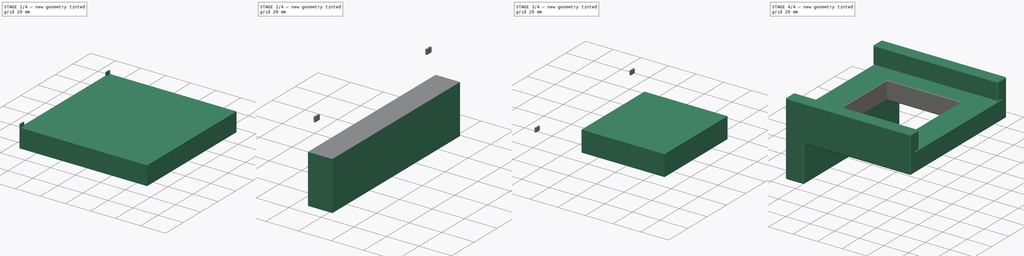
[diagram: build sequence overview — one tinted view per stage of 4, left to right]
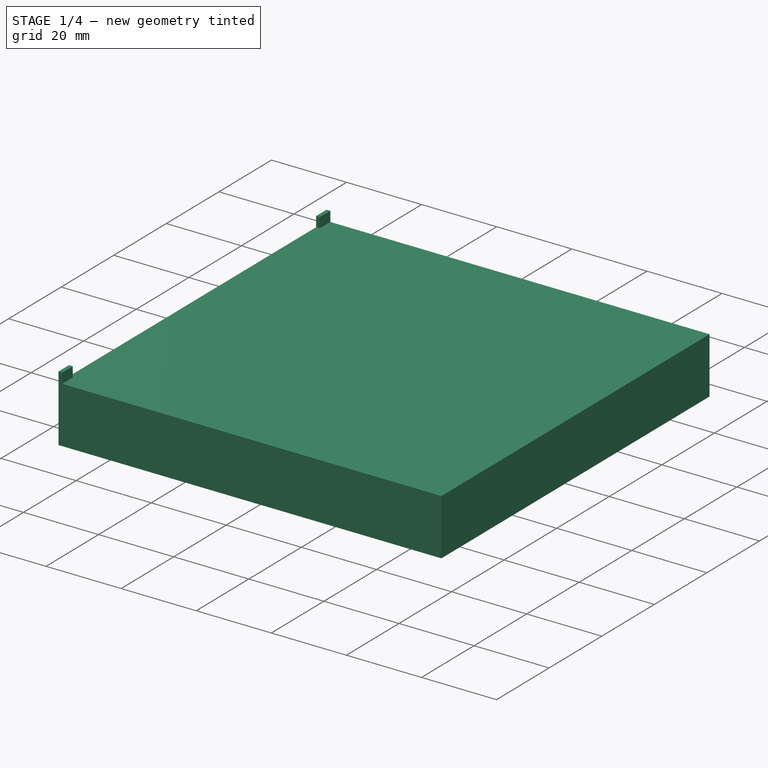
[diagram: stage 1 of 4 — iso view after this stage's code; geometry added in this stage tinted green]
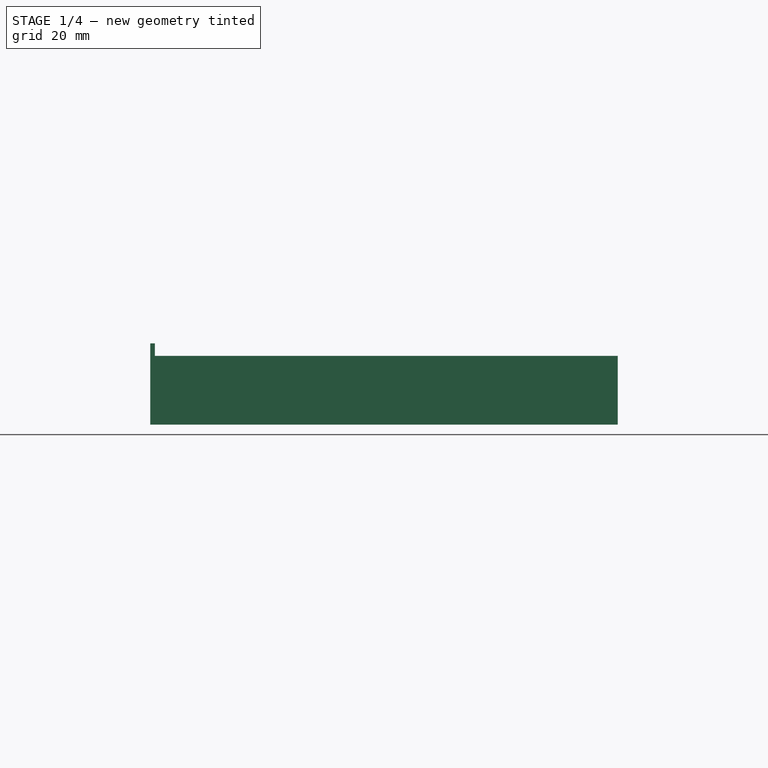
[diagram: stage 1 of 4 — front view after this stage's code; geometry added in this stage tinted green]
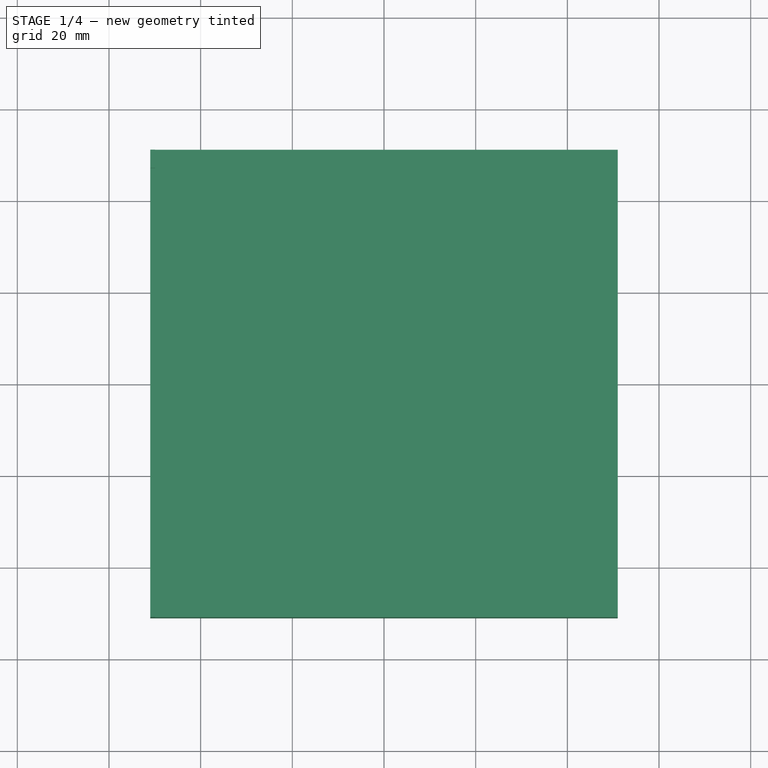
[diagram: stage 1 of 4 — top view after this stage's code; geometry added in this stage tinted green]
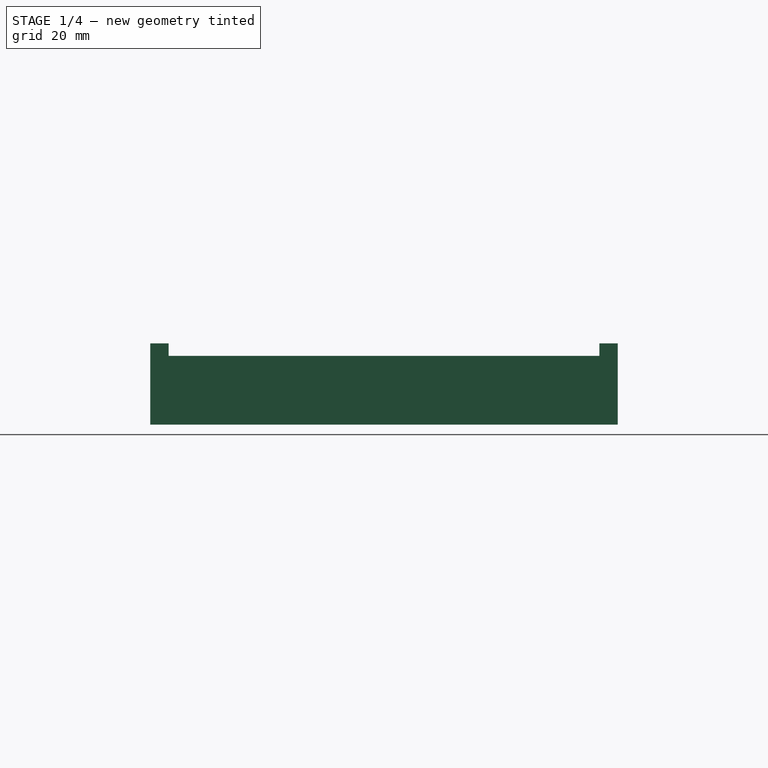
[diagram: stage 1 of 4 — right view after this stage's code; geometry added in this stage tinted green]
FCSTD DOCUMENT  (FreeCAD 0.19R19758 (Git))
Label: JohnScreenWithWindows
License: All rights reserved
LicenseURL: http://en.wikipedia.org/wiki/All_rights_reserved
objects: Sketcher::SketchObject×4, Part::Extrusion×4, Part::MultiFuse×3, Part::Fillet×2, Part::Box×2, Part::Cut×1
note: 16 computed .brp shape members not serialized (recipe doc carries the construction recipe); baked Part::Feature solids carry a one-line shape summary decoded from their .brp

FEATURE [Sketcher::SketchObject] Sketch
  sketch-geometry (4):
    g0: LineSegment StartX=-51 StartY=-51 StartZ=0 EndX=51 EndY=-51 EndZ=0
    g1: LineSegment StartX=51 StartY=-51 StartZ=0 EndX=51 EndY=51 EndZ=0
    g2: LineSegment StartX=51 StartY=51 StartZ=0 EndX=-51 EndY=51 EndZ=0
    g3: LineSegment StartX=-51 StartY=51 StartZ=0 EndX=-51 EndY=-51 EndZ=0
  constraints (11):
    c: Coincident(g0,g1)
    c: Coincident(g1,g2)
    c: Coincident(g2,g3)
    c: Coincident(g3,g0)
    c: Horizontal(g0)
    c: Horizontal(g2)
    c: Vertical(g1)
    c: Vertical(g3)
    c: Symmetric(g2,g0,g-1)
    c: Equal(g2,g1)
    c: Distance(g2) = 102
FEATURE [Part::Extrusion] Extrude
  Base = -> Sketch
  Dir = (0,0,1)
  DirMode = 2
  FaceMakerClass = Part::FaceMakerBullseye
  LengthFwd = 15
  LengthRev = 0
  Solid = true
  Symmetric = false
FEATURE [Part::Box] Box  label="Cube"
  AttacherType = Attacher::AttachEngine3D
  Height = 3
  Length = 1
  Placement = pos=(-51,47,14.7) rot=(0,0,1;0rad)
  Width = 4
FEATURE [Part::Box] Box001  label="Cube001"
  AttacherType = Attacher::AttachEngine3D
  Height = 3
  Length = 1
  Placement = pos=(-51,-51,14.7) rot=(0,0,1;0rad)
  Width = 4
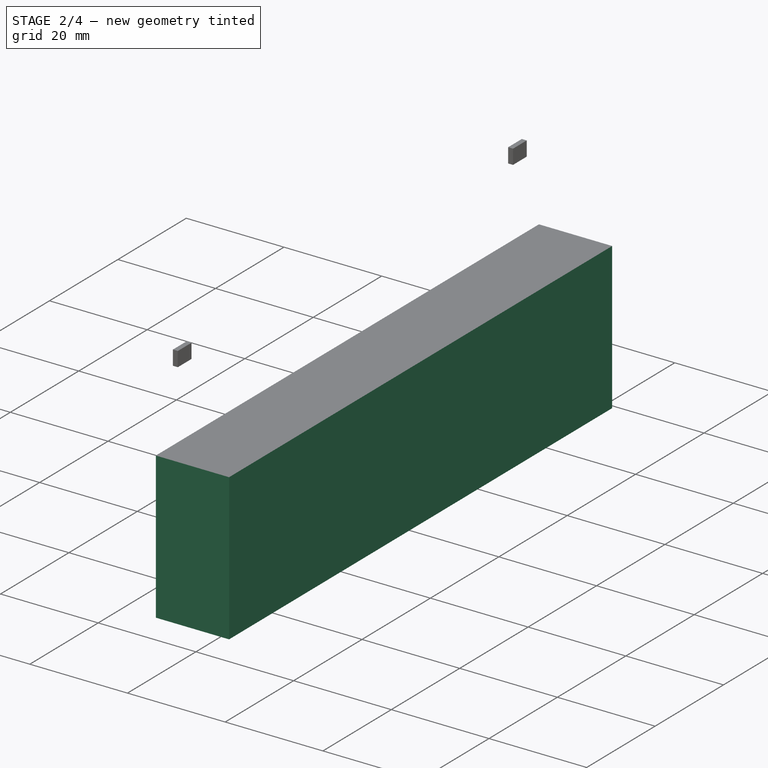
[diagram: stage 2 of 4 — iso view after this stage's code; geometry added in this stage tinted green]
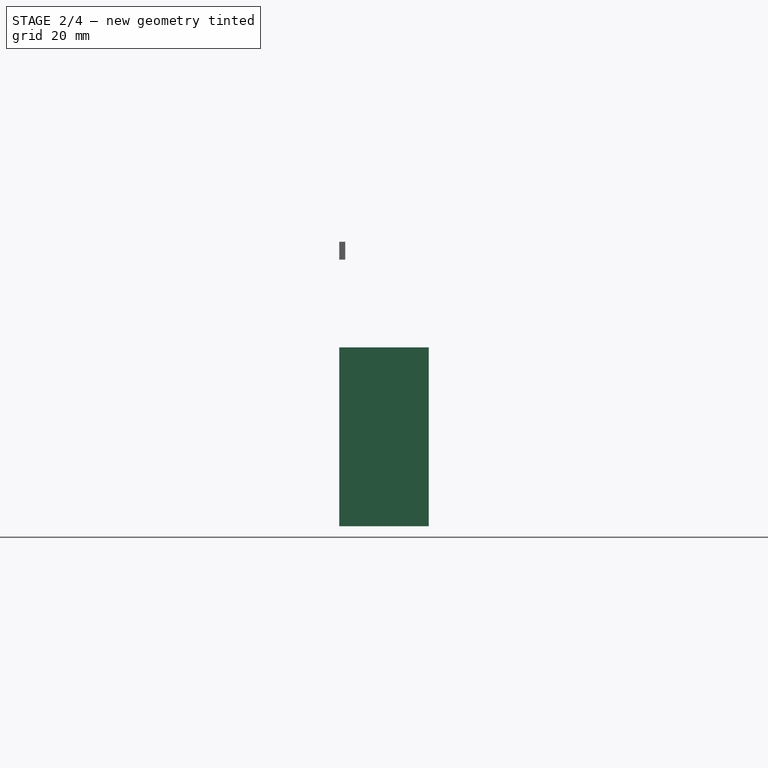
[diagram: stage 2 of 4 — front view after this stage's code; geometry added in this stage tinted green]
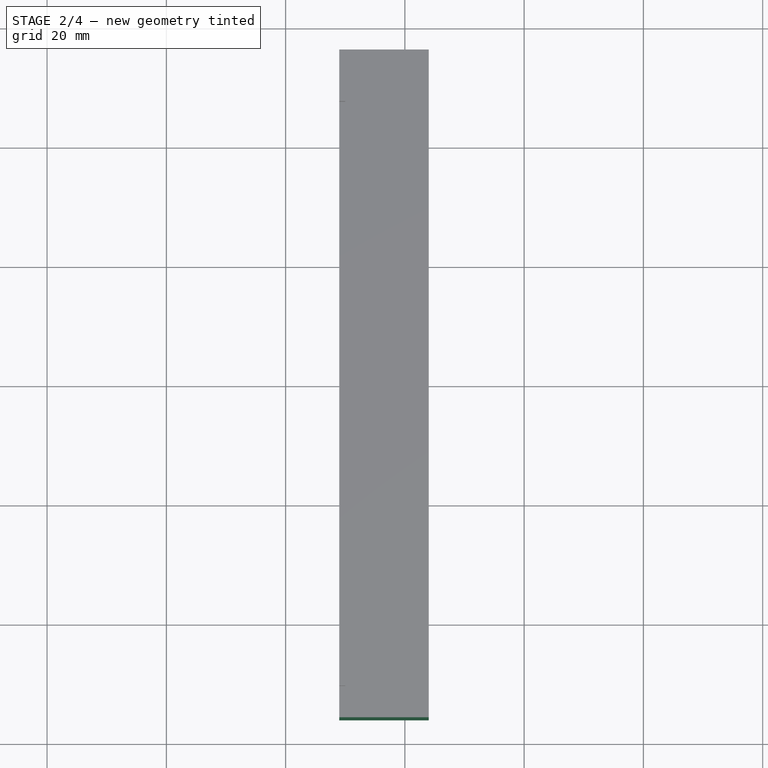
[diagram: stage 2 of 4 — top view after this stage's code; geometry added in this stage tinted green]
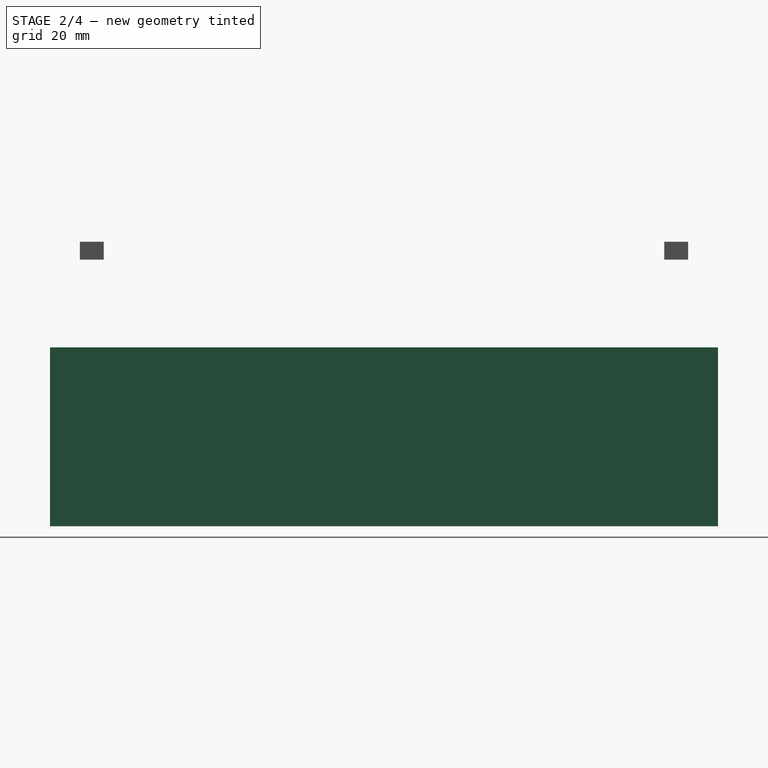
[diagram: stage 2 of 4 — right view after this stage's code; geometry added in this stage tinted green]
FEATURE [Sketcher::SketchObject] Sketch001
  ExternalGeometry = -> [Extrude]
  MapMode = 4
  Placement = pos=(0,0,0) rot=(0.57735,0.57735,0.57735;2.0944rad)
  Support = -> [Sketch]
  sketch-geometry (16):
    g0: LineSegment StartX=-56 StartY=0 StartZ=0 EndX=-56 EndY=30 EndZ=0
    g1: LineSegment StartX=-56 StartY=30 StartZ=0 EndX=-46 EndY=30 EndZ=0
    g2: LineSegment StartX=-56 StartY=0 StartZ=0 EndX=-46 EndY=0 EndZ=0
    g3: LineSegment StartX=-46 StartY=0 StartZ=0 EndX=-46 EndY=15 EndZ=0
    g4: LineSegment StartX=-46 StartY=30 StartZ=0 EndX=-46 EndY=15.9 EndZ=0
    g5: LineSegment StartX=-46 StartY=15.9 StartZ=0 EndX=-51 EndY=15.9 EndZ=0
    g6: LineSegment StartX=-51 StartY=15.9 StartZ=0 EndX=-51 EndY=15 EndZ=0
    g7: LineSegment StartX=-51 StartY=15 StartZ=0 EndX=-46 EndY=15 EndZ=0
    g8: LineSegment StartX=56 StartY=0 StartZ=0 EndX=56 EndY=30 EndZ=0
    g9: LineSegment StartX=56 StartY=30 StartZ=0 EndX=46 EndY=30 EndZ=0
    g10: LineSegment StartX=46 StartY=30 StartZ=0 EndX=46 EndY=15.9 EndZ=0
    g11: LineSegment StartX=46 StartY=15.9 StartZ=0 EndX=51 EndY=15.9 EndZ=0
    g12: LineSegment StartX=51 StartY=15.9 StartZ=0 EndX=51 EndY=15 EndZ=0
    g13: LineSegment StartX=51 StartY=15 StartZ=0 EndX=46 EndY=15 EndZ=0
    g14: LineSegment StartX=56 StartY=0 StartZ=0 EndX=46 EndY=0 EndZ=0
    g15: LineSegment StartX=46 StartY=15 StartZ=0 EndX=46 EndY=0 EndZ=0
  constraints (46):
    c: PointOnObject(g0,g-1)
    c: Vertical(g0)
    c: Coincident(g1,g0)
    c: Horizontal(g1)
    c: PointOnObject(g2,g-1)
    c: Coincident(g3,g2)
    c: Vertical(g3)
    c: Coincident(g4,g1)
    c: Vertical(g4)
    c: Coincident(g5,g4)
    c: Coincident(g6,g5)
    c: Coincident(g7,g6)
    c: Coincident(g7,g3)
    c: Vertical(g6)
    c: Horizontal(g5)
    c: Horizontal(g7)
    c: Equal(g1,g2)
    c: Coincident(g0,g2)
    c: Coincident(g6,g-4)
    c: Distance(g5) = 5
    c: Distance(g6) = 0.9
    c: Distance(g1) = 10
    c: Distance(g0) = 30
    c: Vertical(g8)
    c: Coincident(g9,g8)
    c: Horizontal(g9)
    c: Coincident(g10,g9)
    c: Vertical(g10)
    c: Coincident(g11,g10)
    c: Coincident(g12,g11)
    c: Coincident(g13,g12)
    c: Vertical(g12)
    c: Horizontal(g11)
    c: Horizontal(g13)
    c: Equal(g9,g14)
    c: Coincident(g8,g14)
    c: Distance(g11) = 5
    c: Distance(g12) = 0.9
    c: Distance(g9) = 10
    c: Distance(g8) = 30
    c: Coincident(g15,g13)
    c: Coincident(g15,g14)
    c: Vertical(g15)
    c: Coincident(g12,g-5)
    c: Horizontal(g14)
    c: PointOnObject(g8,g-1)
FEATURE [Part::Extrusion] Extrude001
  Base = -> Sketch001
  Dir = (-1,0,0)
  DirMode = 0
  FaceMakerClass = Part::FaceMakerBullseye
  LengthFwd = 102
  LengthRev = 0
  Solid = true
  Symmetric = true
FEATURE [Part::MultiFuse] Fusion
  Shapes = -> [Extrude,Extrude001]
FEATURE [Sketcher::SketchObject] Sketch002
  ExternalGeometry = -> [Fusion]
  Placement = pos=(0,0,0) rot=(1,0,0;1.5708rad)
  sketch-geometry (4):
    g0: LineSegment StartX=-51 StartY=-6.22e-14 StartZ=0 EndX=-36 EndY=-6.22e-14 EndZ=0
    g1: LineSegment StartX=-36 StartY=-6.22e-14 StartZ=0 EndX=-36 EndY=-30 EndZ=0
    g2: LineSegment StartX=-36 StartY=-30 StartZ=0 EndX=-51 EndY=-30 EndZ=0
    g3: LineSegment StartX=-51 StartY=-30 StartZ=0 EndX=-51 EndY=-6.04e-14 EndZ=0
  constraints (11):
    c: Coincident(g-4,g0)
    c: Horizontal(g0)
    c: Coincident(g0,g1)
    c: Vertical(g1)
    c: Coincident(g1,g2)
    c: Coincident(g2,g3)
    c: Coincident(g3,g0)
    c: Horizontal(g2)
    c: Equal(g0,g2)
    c: Distance(g2) = 15
    c: Distance(g1) = 30
FEATURE [Part::Extrusion] Extrude002
  Base = -> Sketch002
  Dir = (0,-1,0)
  DirMode = 0
  FaceMakerClass = Part::FaceMakerBullseye
  LengthFwd = 112
  LengthRev = 0
  Solid = true
  Symmetric = true
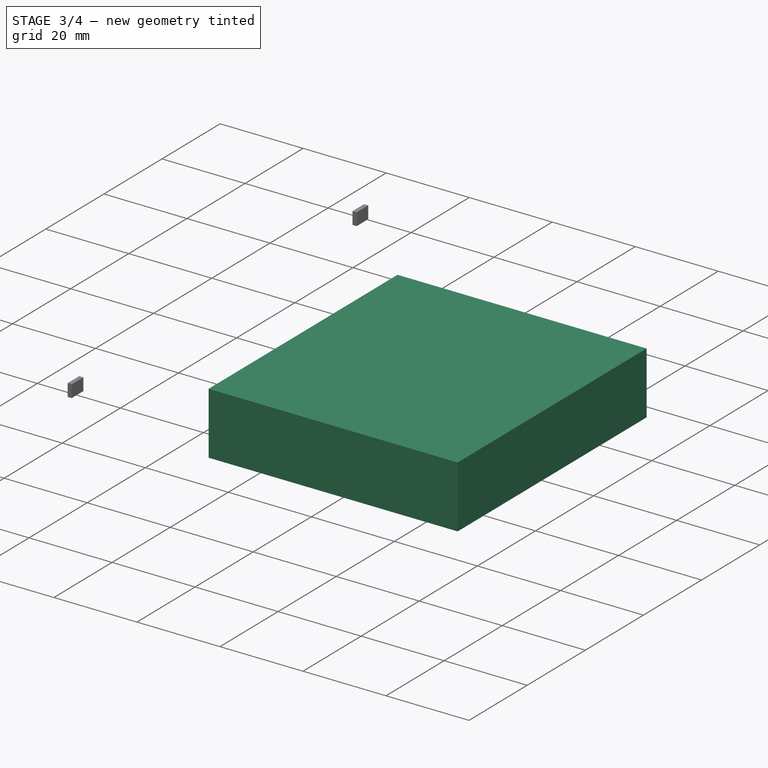
[diagram: stage 3 of 4 — iso view after this stage's code; geometry added in this stage tinted green]
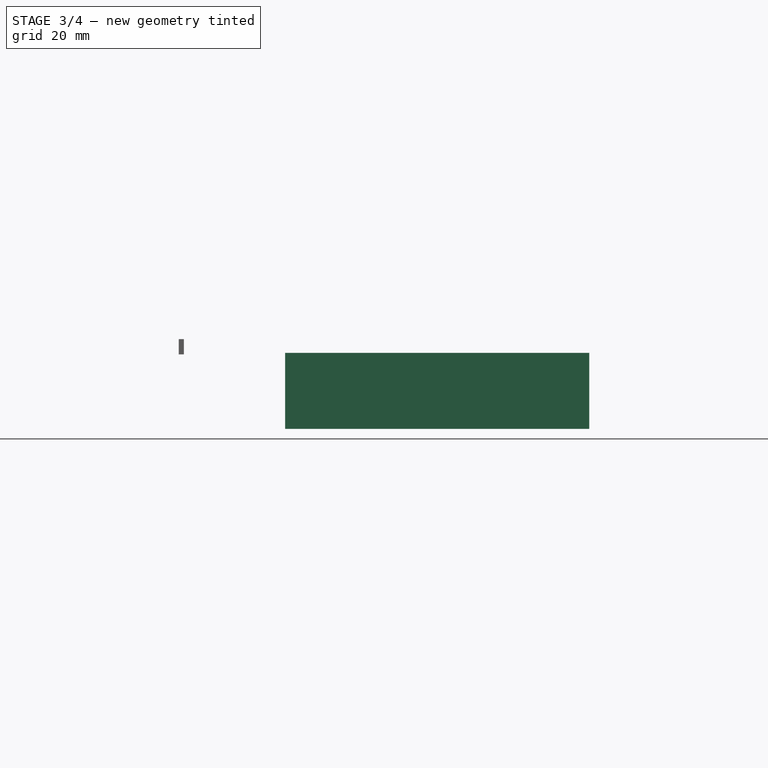
[diagram: stage 3 of 4 — front view after this stage's code; geometry added in this stage tinted green]
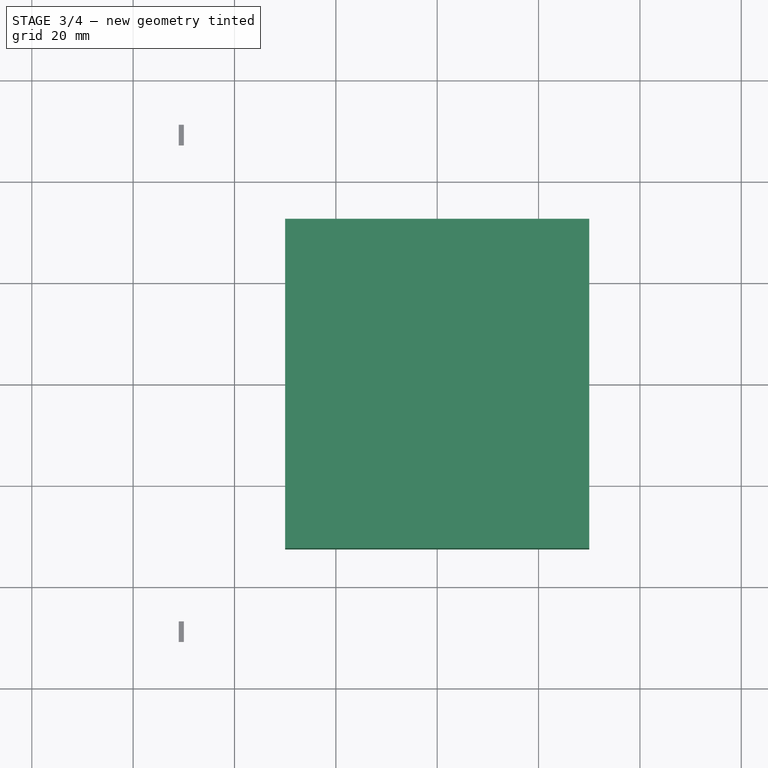
[diagram: stage 3 of 4 — top view after this stage's code; geometry added in this stage tinted green]
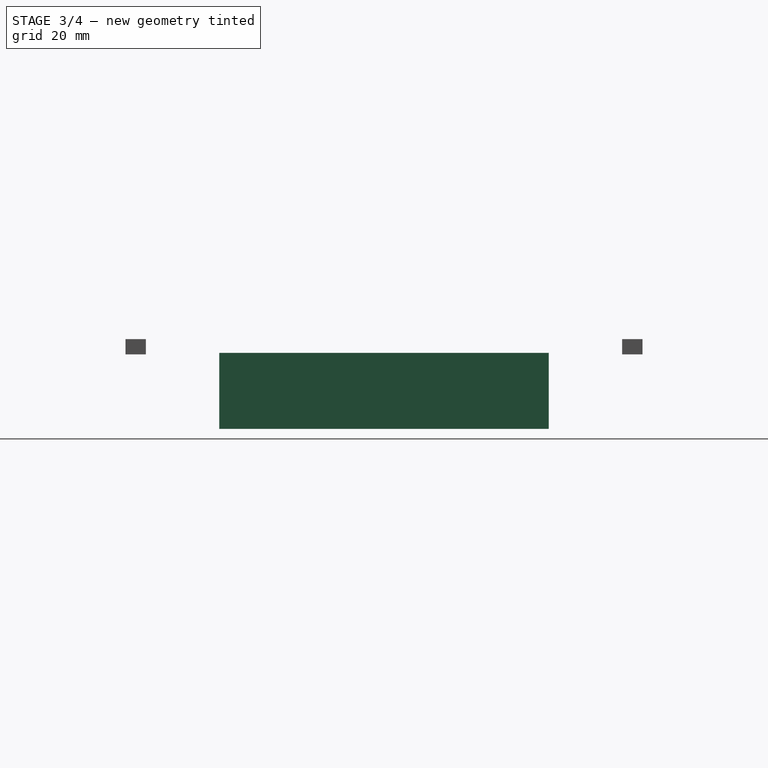
[diagram: stage 3 of 4 — right view after this stage's code; geometry added in this stage tinted green]
FEATURE [Part::MultiFuse] Fusion001
  Refine = true
  Shapes = -> [Extrude002,Fusion]
FEATURE [Part::Fillet] Fillet
  Base = -> Fusion001
  Edges = 26 edges r=1: [Edge1,Edge2,Edge3,Edge4,Edge5,Edge6,Edge7,Edge8,Edge9,Edge10,Edge11,Edge12,Edge13,Edge21,Edge22,Edge23,Edge24,Edge25,Edge26,Edge27,Edge28,Edge29,Edge30,Edge31,Edge33,Edge34]
FEATURE [Sketcher::SketchObject] Sketch003
  MapMode = 5
  Placement = pos=(0,0,15) rot=(0,0,1;0rad)
  Support = -> [Fillet]
  sketch-geometry (4):
    g0: LineSegment StartX=-30 StartY=32.5 StartZ=0 EndX=30 EndY=32.5 EndZ=0
    g1: LineSegment StartX=30 StartY=32.5 StartZ=0 EndX=30 EndY=-32.5 EndZ=0
    g2: LineSegment StartX=30 StartY=-32.5 StartZ=0 EndX=-30 EndY=-32.5 EndZ=0
    g3: LineSegment StartX=-30 StartY=-32.5 StartZ=0 EndX=-30 EndY=32.5 EndZ=0
  constraints (11):
    c: Coincident(g0,g1)
    c: Coincident(g1,g2)
    c: Coincident(g2,g3)
    c: Coincident(g3,g0)
    c: Horizontal(g0)
    c: Horizontal(g2)
    c: Vertical(g1)
    c: Vertical(g3)
    c: Distance(g1) = 65
    c: Distance(g0) = 60
    c: Symmetric(g0,g1,g-1)
FEATURE [Part::Extrusion] Extrude003
  Base = -> Sketch003
  Dir = (0,0,-1)
  DirMode = 0
  FaceMakerClass = Part::FaceMakerBullseye
  LengthFwd = 15
  LengthRev = 0
  Solid = true
  Symmetric = false
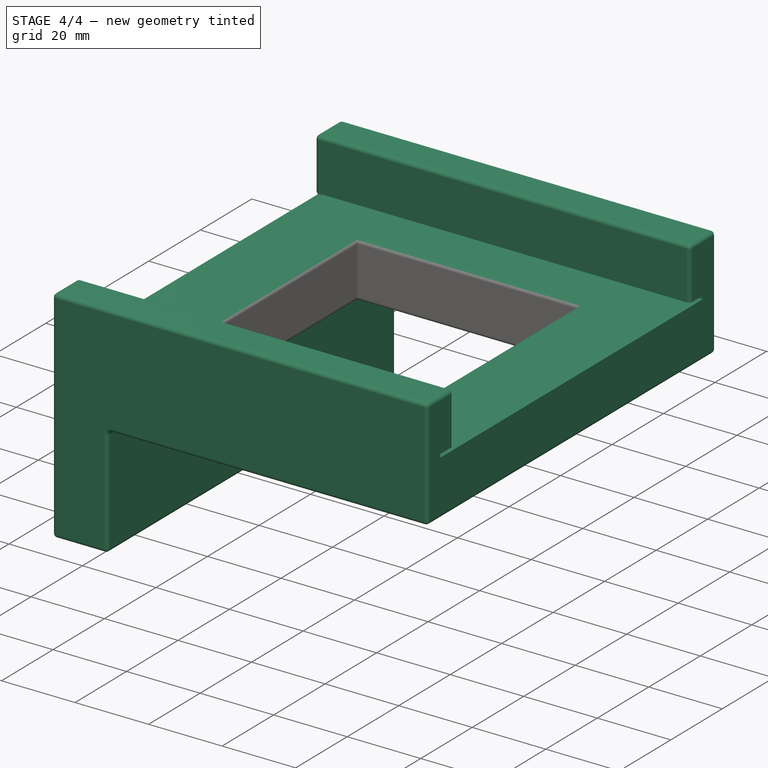
[diagram: stage 4 of 4 — iso view after this stage's code; geometry added in this stage tinted green]
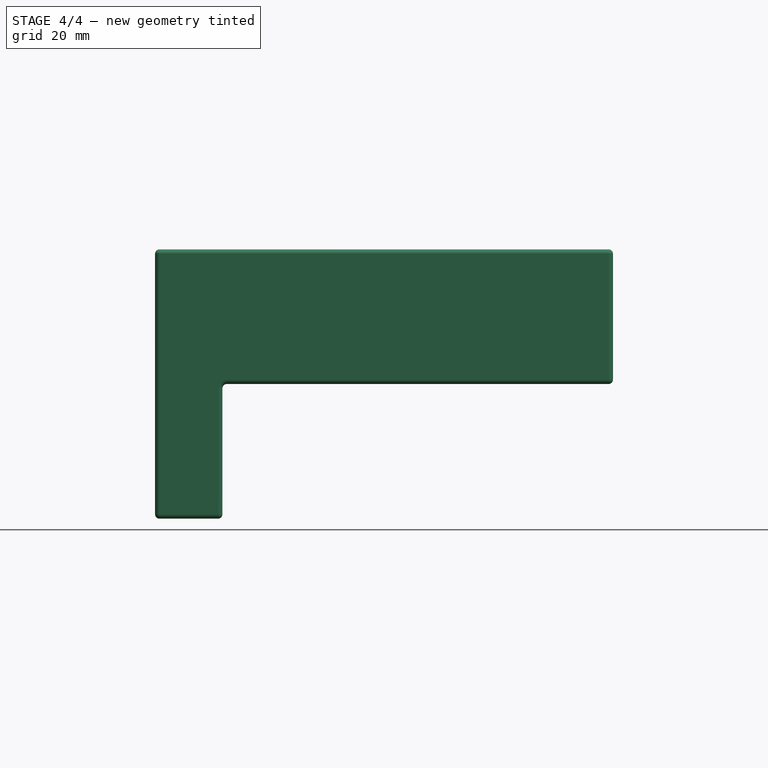
[diagram: stage 4 of 4 — front view after this stage's code; geometry added in this stage tinted green]
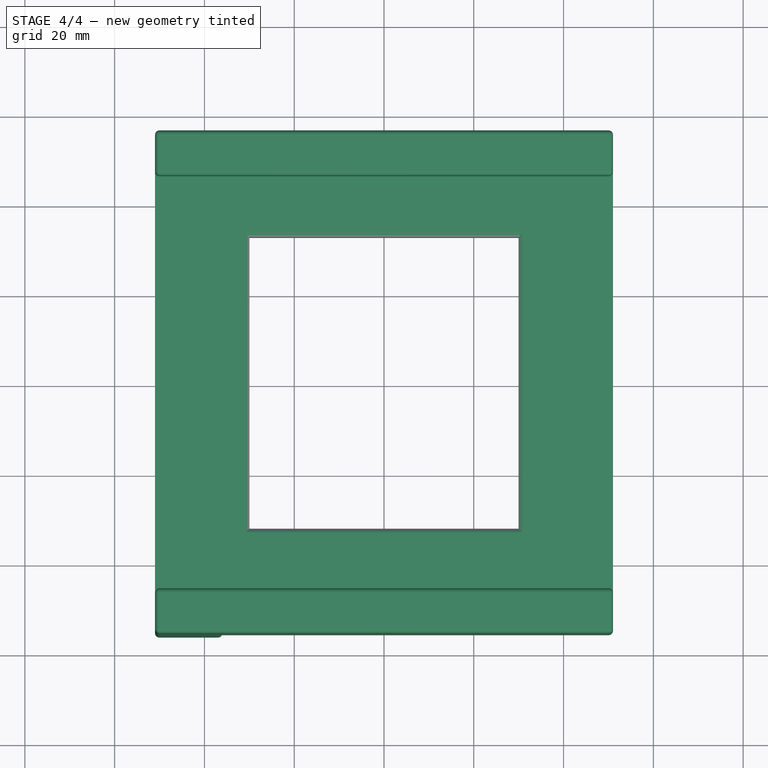
[diagram: stage 4 of 4 — top view after this stage's code; geometry added in this stage tinted green]
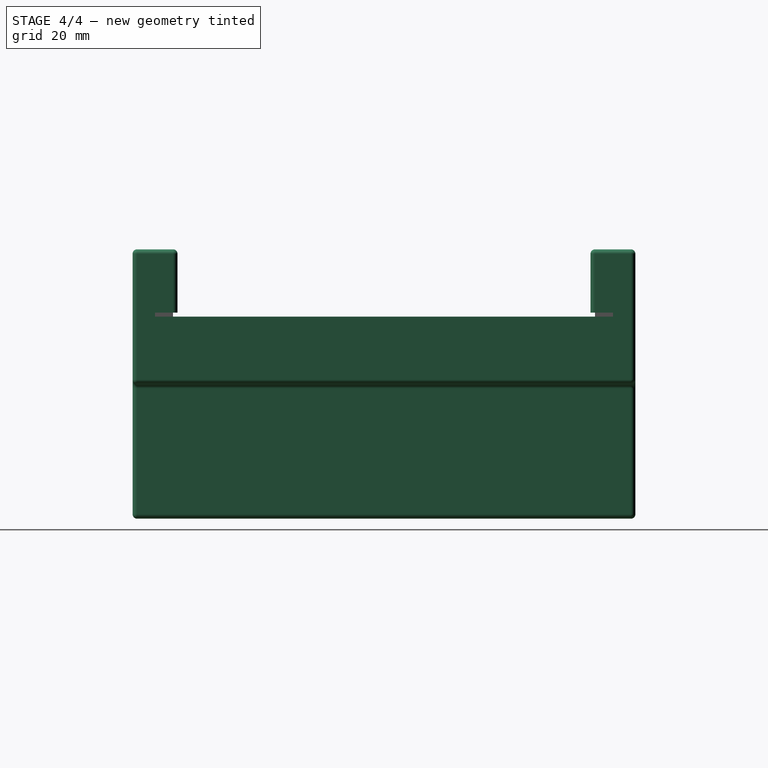
[diagram: stage 4 of 4 — right view after this stage's code; geometry added in this stage tinted green]
FEATURE [Part::Cut] Cut
  Base = -> Fillet
  Tool = -> Extrude003
FEATURE [Part::Fillet] Fillet001
  Base = -> Cut
  Edges = 8 edges r=1: [Edge24,Edge25,Edge26,Edge27,Edge52,Edge54,Edge56,Edge57]
FEATURE [Part::MultiFuse] Fusion002
  Refine = true
  Shapes = -> [Fillet001,Box,Box001]
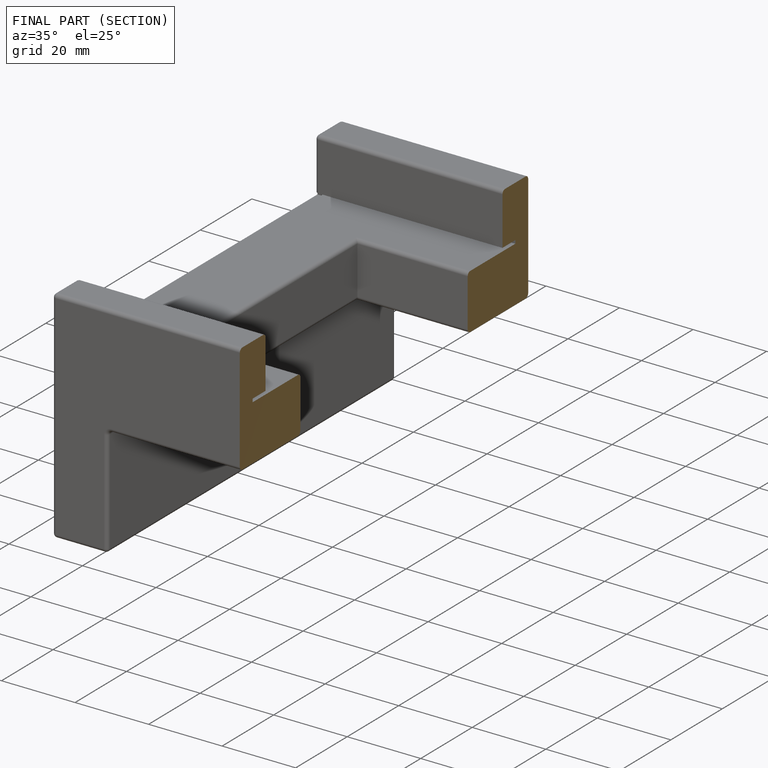
[diagram: finished part — half-section view (interior)]
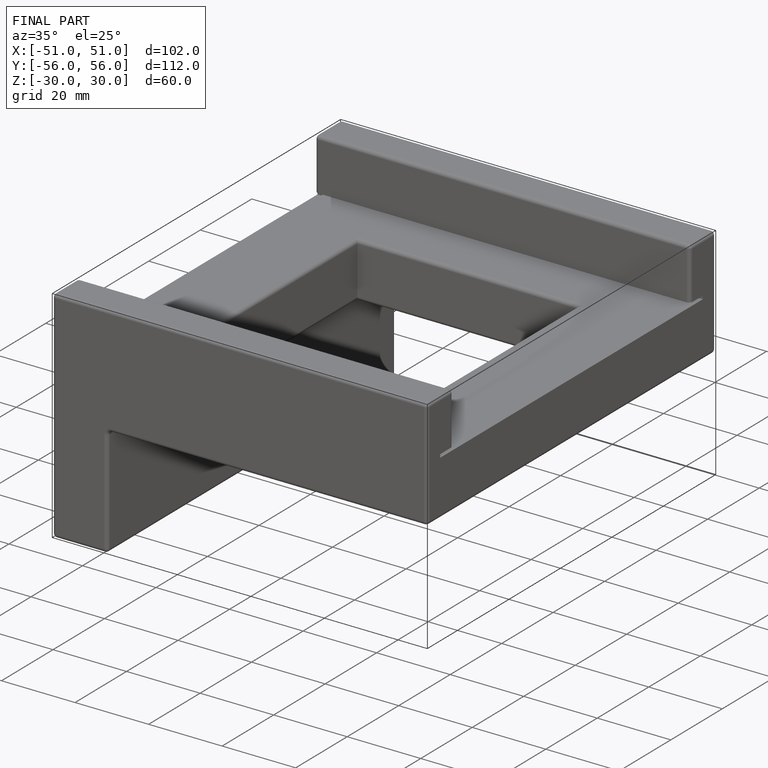
[diagram: finished part — iso view with bounding-box wireframe]
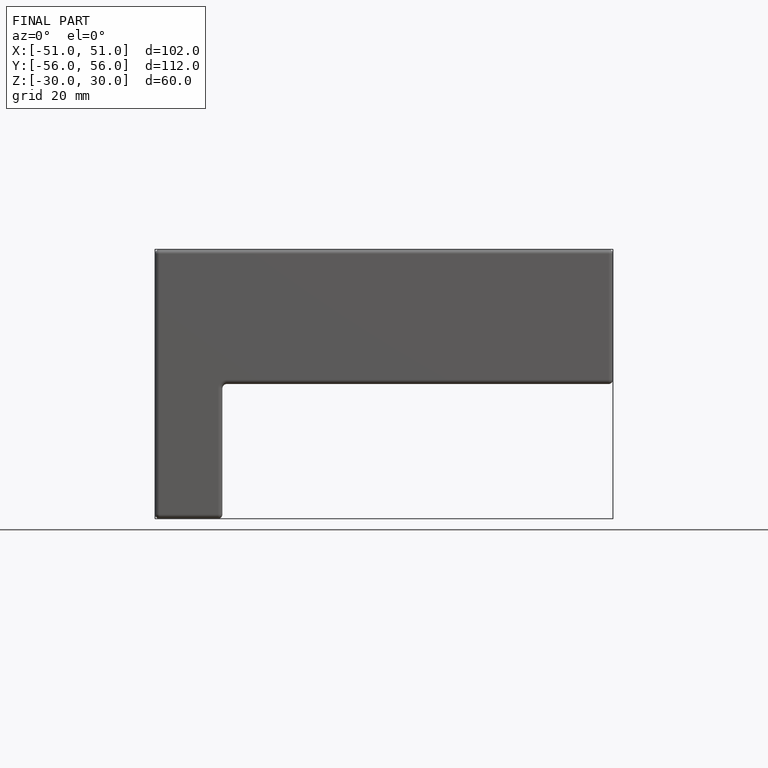
[diagram: finished part — front view with bounding-box wireframe]
